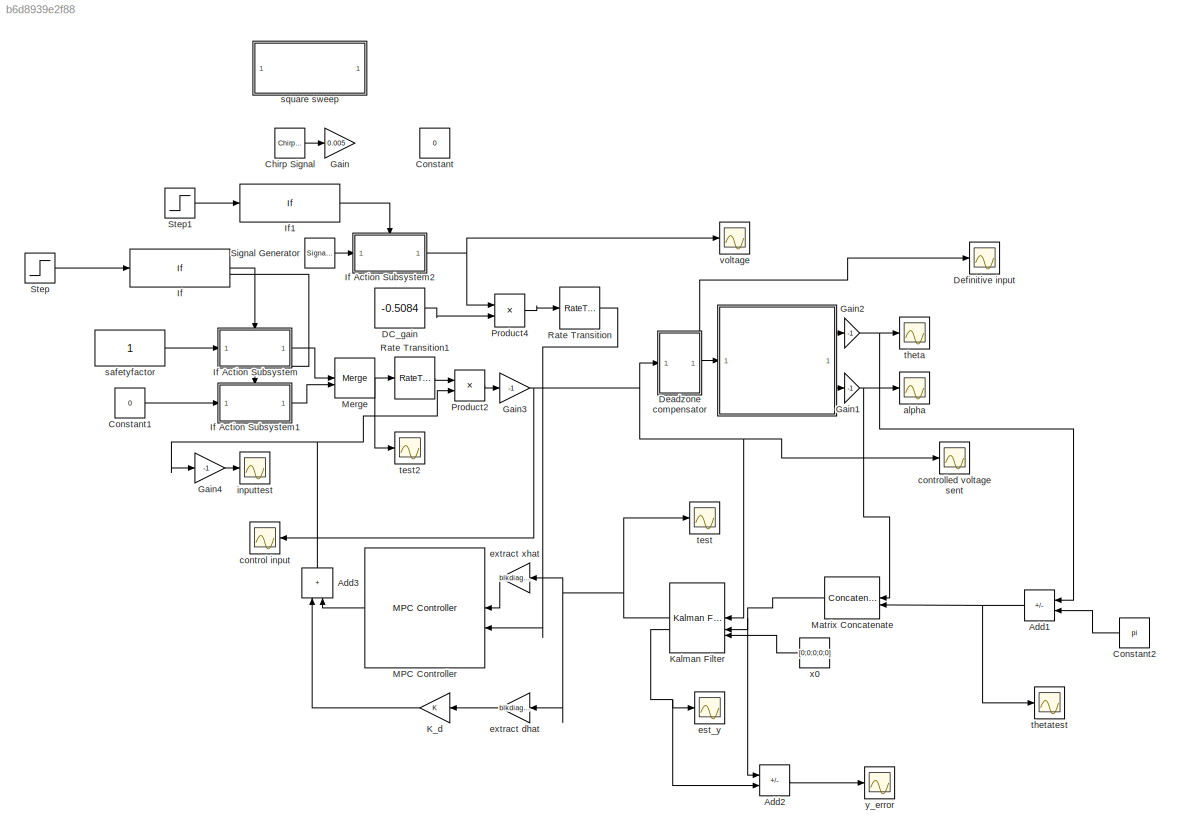
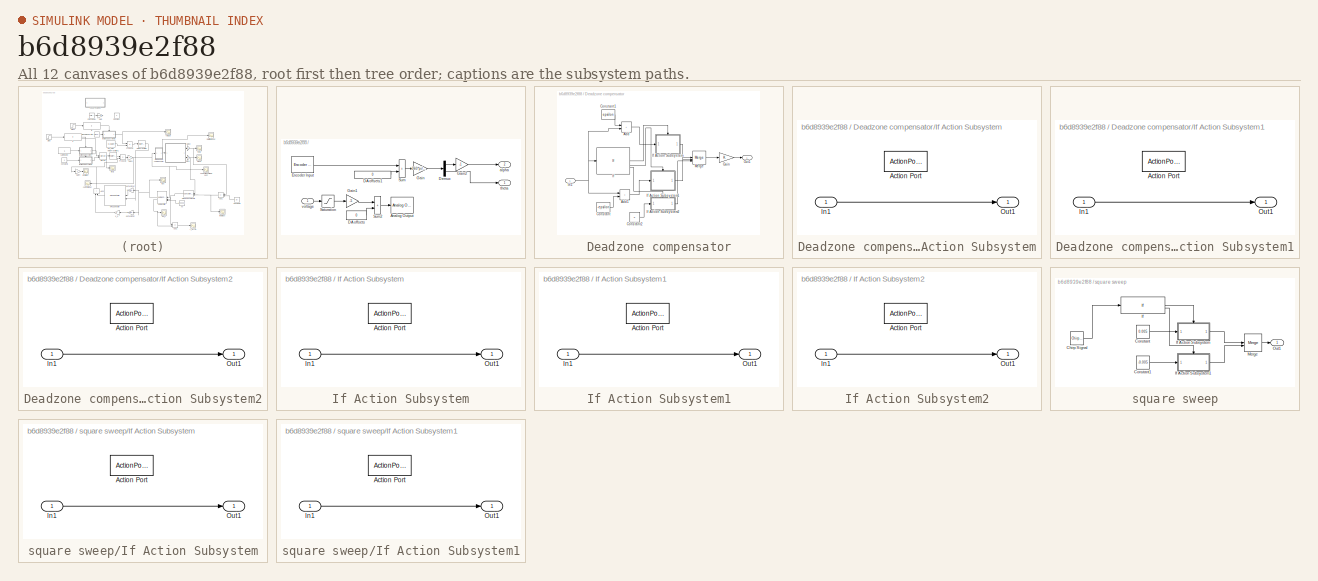
[diagram: thumbnail index - all 12 canvases of the model, root first then tree order]
MODEL slx_b6d8939e2f88
KIND model
CONFIG AbsTol = auto
CONFIG EnableMultiTasking = on
CONFIG FixedStep = auto
CONFIG MaxStep = auto
CONFIG MinStep = auto
CONFIG RelTol = 1e-3
CONFIG SampleTimeConstraint = Unconstrained
CONFIG SolverName = ode1
CONFIG StartTime = 0.0
CONFIG StopTime = 120
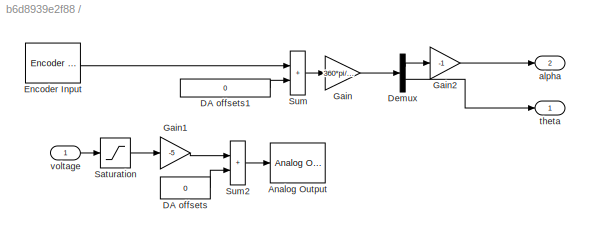
BLOCK [SubSystem]  
  InitFcn = hwinit
  LoadFcn = hwinit
  NameLocation = top
  ShowPortLabels = none
BLOCK [Reference]  /Analog Output  REF=sldrtlib/Analog Output
  AttributesFormatString = Humusoft\nMF634 [auto]
  SourceBlock = sldrtlib/Analog Output
  SourceType = Simulink Desktop Real-Time Analog Output
BLOCK [Constant]  /DA offsets
  Value = 0
BLOCK [Constant]  /DA offsets1
  SampleTime = h
  Value = 0
BLOCK [Demux]  /Demux
  Outputs = 2
BLOCK [Reference]  /Encoder Input  REF=sldrtlib/Encoder Input
  AttributesFormatString = Humusoft\nMF634 [auto]
  SourceBlock = sldrtlib/Encoder Input
  SourceType = Simulink Desktop Real-Time Encoder Input
BLOCK [Gain]  /Gain
  Gain = 360*pi/(180*512*4)
  OutDataTypeStr = Inherit: Same as input
  ParamDataTypeStr = Inherit: Same as input
  SaturateOnIntegerOverflow = on
BLOCK [Gain]  /Gain1
  Gain = -5
  OutDataTypeStr = Inherit: Same as input
  ParamDataTypeStr = Inherit: Same as input
  SaturateOnIntegerOverflow = on
BLOCK [Gain]  /Gain2
  Gain = -1
  OutDataTypeStr = Inherit: Same as input
  ParamDataTypeStr = Inherit: Same as input
  SaturateOnIntegerOverflow = on
BLOCK [Saturate]  /Saturation
  LowerLimit = -1
  UpperLimit = 1
BLOCK [Sum]  /Sum
  IconShape = rectangular
  InputSameDT = on
  OutDataTypeStr = Inherit: Same as first input
  SaturateOnIntegerOverflow = on
BLOCK [Sum]  /Sum2
  IconShape = rectangular
  InputSameDT = on
  OutDataTypeStr = Inherit: Same as first input
  SaturateOnIntegerOverflow = on
BLOCK [Outport]  /alpha
  Port = 2
  Tag = Cable length
BLOCK [Outport]  /theta
  Tag = Cable length
BLOCK [Inport]  /voltage
BLOCK [Sum] Add1
  IconShape = rectangular
  Inputs = +-
BLOCK [Sum] Add2
  IconShape = rectangular
  Inputs = +-
BLOCK [Sum] Add3
  IconShape = rectangular
  NameLocation = right
BLOCK [Reference] Chirp Signal  REF=simulink/Sources/Chirp Signal
  SourceBlock = simulink/Sources/Chirp Signal
  SourceType = chirp
BLOCK [Constant] Constant
  Value = 0
BLOCK [Constant] Constant1
  Value = 0
BLOCK [Constant] Constant2
  Value = pi
BLOCK [Constant] DC_gain
  SampleTime = h
  Value = -0.5084
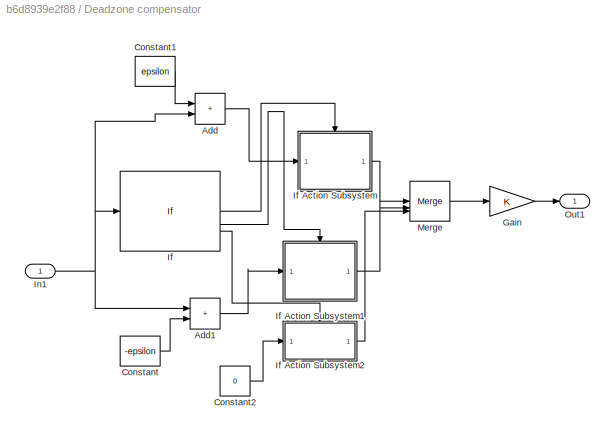
BLOCK [SubSystem] Deadzone compensator
BLOCK [Sum] Deadzone compensator/Add
  IconShape = rectangular
BLOCK [Sum] Deadzone compensator/Add1
  IconShape = rectangular
BLOCK [Constant] Deadzone compensator/Constant
  Value = -epsilon
BLOCK [Constant] Deadzone compensator/Constant1
  Value = epsilon
BLOCK [Constant] Deadzone compensator/Constant2
  Value = 0
BLOCK [Gain] Deadzone compensator/Gain
BLOCK [If] Deadzone compensator/If
  ElseIfExpressions = u1 < 0
BLOCK [SubSystem] Deadzone compensator/If Action Subsystem
  TreatAsAtomicUnit = on
BLOCK [ActionPort] Deadzone compensator/If Action Subsystem/Action Port
  ActionPortLabel = if(u1 > 0)
BLOCK [Inport] Deadzone compensator/If Action Subsystem/In1
BLOCK [Outport] Deadzone compensator/If Action Subsystem/Out1
BLOCK [SubSystem] Deadzone compensator/If Action Subsystem1
  TreatAsAtomicUnit = on
BLOCK [ActionPort] Deadzone compensator/If Action Subsystem1/Action Port
  ActionPortLabel = elseif(u1 < 0)
BLOCK [Inport] Deadzone compensator/If Action Subsystem1/In1
BLOCK [Outport] Deadzone compensator/If Action Subsystem1/Out1
BLOCK [SubSystem] Deadzone compensator/If Action Subsystem2
  TreatAsAtomicUnit = on
BLOCK [ActionPort] Deadzone compensator/If Action Subsystem2/Action Port
  ActionPortLabel = else
BLOCK [Inport] Deadzone compensator/If Action Subsystem2/In1
BLOCK [Outport] Deadzone compensator/If Action Subsystem2/Out1
BLOCK [Inport] Deadzone compensator/In1
BLOCK [Merge] Deadzone compensator/Merge
  Inputs = 3
BLOCK [Outport] Deadzone compensator/Out1
BLOCK [Scope] Definitive input
  Floating = off
  NumInputPorts = 1
  ScopeSpecificationString = Simulink.scopes.TimeScopeBlockCfg('CurrentConfiguration', extmgr.ConfigurationSet(extmgr.Configuration('Core','General UI',true),extmgr.Configuration('Core','Source UI',true),extmgr.Configuration('Sources','WiredSimulink',true,'DataLoggingVariableName','ScopeData1'),extmgr.Configuration('Visuals','Time Domain',true,'SerializedDisplays',{struct('MinYLimReal','-0.07381','MaxYLimReal','0.20317','YLab...<+1451ch>
BLOCK [Gain] Gain
  Gain = 0.005
BLOCK [Gain] Gain1
  Gain = -1
BLOCK [Gain] Gain2
  Gain = -1
BLOCK [Gain] Gain3
  Gain = -1
BLOCK [Gain] Gain4
  Gain = -1
BLOCK [If] If
BLOCK [SubSystem] If Action Subsystem
  TreatAsAtomicUnit = on
BLOCK [ActionPort] If Action Subsystem/Action Port
  ActionPortLabel = if(u1 > 0)
BLOCK [Inport] If Action Subsystem/In1
BLOCK [Outport] If Action Subsystem/Out1
BLOCK [SubSystem] If Action Subsystem1
  TreatAsAtomicUnit = on
BLOCK [ActionPort] If Action Subsystem1/Action Port
  ActionPortLabel = else
BLOCK [Inport] If Action Subsystem1/In1
BLOCK [Outport] If Action Subsystem1/Out1
BLOCK [SubSystem] If Action Subsystem2
  TreatAsAtomicUnit = on
BLOCK [ActionPort] If Action Subsystem2/Action Port
  ActionPortLabel = if(u1 > 0)
BLOCK [Inport] If Action Subsystem2/In1
BLOCK [Outport] If Action Subsystem2/Out1
BLOCK [If] If1
BLOCK [Gain] K_d
BLOCK [Reference] Kalman Filter  REF=ctrlSharedLib/Kalman Filter
  SourceBlock = ctrlSharedLib/Kalman Filter
  SourceType = ctrlKalmanFilter
BLOCK [Reference] MPC Controller  REF=mpclib/MPC Controller  (lib defined in mdl_ae329e0e0455)
  SCDEnableBlockLinearizationSpecification = on
  SourceBlock = mpclib/MPC Controller
  SourceType = MPC
BLOCK [Concatenate] Matrix Concatenate
  ConcatenateDimension = 2
  NameLocation = top
BLOCK [Merge] Merge
BLOCK [Product] Product2
BLOCK [Product] Product4
  Inputs = */
BLOCK [RateTransition] Rate Transition
  OutPortSampleTime = h
BLOCK [RateTransition] Rate Transition1
  OutPortSampleTime = h
BLOCK [SignalGenerator] Signal Generator
  Amplitude = 0.05
  Frequency = 0.05
  WaveForm = square
BLOCK [Step] Step
  SampleTime = 0
  Time = 4
BLOCK [Step] Step1
  SampleTime = h
  Time = 12
BLOCK [Scope] alpha
  Floating = off
  NumInputPorts = 1
  ScopeSpecificationString = Simulink.scopes.TimeScopeBlockCfg('CurrentConfiguration', extmgr.ConfigurationSet(extmgr.Configuration('Core','General UI',true),extmgr.Configuration('Core','Source UI',true),extmgr.Configuration('Sources','WiredSimulink',true,'DataLogging',true,'DataLoggingVariableName','alpha','SampleTime','h','DataLoggingSaveFormat','Array','DataLoggingDecimation','1','DataLoggingDecimateData',true),extmgr.Conf...<+1783ch>
BLOCK [Scope] control input
  Floating = off
  NumInputPorts = 1
  ScopeSpecificationString = Simulink.scopes.TimeScopeBlockCfg('CurrentConfiguration', extmgr.ConfigurationSet(extmgr.Configuration('Core','General UI',true),extmgr.Configuration('Core','Source UI',true),extmgr.Configuration('Sources','WiredSimulink',true,'DataLoggingVariableName','ScopeData2'),extmgr.Configuration('Visuals','Time Domain',true,'SerializedDisplays',{struct('MinYLimReal','-0.91638','MaxYLimReal','0.67671','YLab...<+1435ch>
BLOCK [Scope] controlled voltage sent
  Floating = off
  NumInputPorts = 1
  ScopeSpecificationString = Simulink.scopes.TimeScopeBlockCfg('CurrentConfiguration', extmgr.ConfigurationSet(extmgr.Configuration('Core','General UI',true),extmgr.Configuration('Core','Source UI',true),extmgr.Configuration('Sources','WiredSimulink',true,'DataLoggingVariableName','ScopeData1'),extmgr.Configuration('Visuals','Time Domain',true,'SerializedDisplays',{struct('MinYLimReal','-1.69035','MaxYLimReal','2.16971','YLab...<+1433ch>
BLOCK [Scope] est_y
  Floating = off
  NumInputPorts = 1
  ScopeSpecificationString = Simulink.scopes.TimeScopeBlockCfg('CurrentConfiguration', extmgr.ConfigurationSet(extmgr.Configuration('Core','General UI',true),extmgr.Configuration('Core','Source UI',true),extmgr.Configuration('Sources','WiredSimulink',true,'DataLoggingVariableName','ScopeData1'),extmgr.Configuration('Visuals','Time Domain',true,'SerializedDisplays',{struct('MinYLimReal','-0.10772','MaxYLimReal','0.05326','YLab...<+1465ch>
BLOCK [Gain] extract dhat
  Gain = blkdiag(zeros(4,4),1)
  Multiplication = Matrix(K*u)
BLOCK [Gain] extract xhat
  Gain = blkdiag(eye(4),0)
  Multiplication = Matrix(K*u)
BLOCK [Scope] inputtest
  Floating = off
  NumInputPorts = 1
  ScopeSpecificationString = Simulink.scopes.TimeScopeBlockCfg('CurrentConfiguration', extmgr.ConfigurationSet(extmgr.Configuration('Core','General UI',true),extmgr.Configuration('Core','Source UI',true),extmgr.Configuration('Sources','WiredSimulink',true,'DataLoggingVariableName','ScopeData1'),extmgr.Configuration('Visuals','Time Domain',true,'SerializedDisplays',{struct('MinYLimReal','-23.9749','MaxYLimReal','157.3897','YLa...<+1465ch>
BLOCK [Constant] safetyfactor
  SampleTime = h
BLOCK [SubSystem] square sweep
BLOCK [Reference] square sweep/Chirp Signal  REF=simulink/Sources/Chirp Signal
  SourceBlock = simulink/Sources/Chirp Signal
  SourceType = chirp
BLOCK [Constant] square sweep/Constant
  Value = 0.005
BLOCK [Constant] square sweep/Constant1
  Value = -0.005
BLOCK [If] square sweep/If
BLOCK [SubSystem] square sweep/If Action Subsystem
  TreatAsAtomicUnit = on
BLOCK [ActionPort] square sweep/If Action Subsystem/Action Port
  ActionPortLabel = if(u1 > 0)
BLOCK [Inport] square sweep/If Action Subsystem/In1
BLOCK [Outport] square sweep/If Action Subsystem/Out1
BLOCK [SubSystem] square sweep/If Action Subsystem1
  TreatAsAtomicUnit = on
BLOCK [ActionPort] square sweep/If Action Subsystem1/Action Port
  ActionPortLabel = else
BLOCK [Inport] square sweep/If Action Subsystem1/In1
BLOCK [Outport] square sweep/If Action Subsystem1/Out1
BLOCK [Merge] square sweep/Merge
BLOCK [Outport] square sweep/Out1
BLOCK [Scope] test
  Floating = off
  NumInputPorts = 1
  ScopeSpecificationString = Simulink.scopes.TimeScopeBlockCfg('CurrentConfiguration', extmgr.ConfigurationSet(extmgr.Configuration('Core','General UI',true),extmgr.Configuration('Core','Source UI',true),extmgr.Configuration('Sources','WiredSimulink',true,'DataLoggingVariableName','ScopeData1'),extmgr.Configuration('Visuals','Time Domain',true,'SerializedDisplays',{struct('MinYLimReal','-192.50669','MaxYLimReal','179.78255','...<+1539ch>
BLOCK [Scope] test2
  Floating = off
  NumInputPorts = 1
  ScopeSpecificationString = Simulink.scopes.TimeScopeBlockCfg('CurrentConfiguration', extmgr.ConfigurationSet(extmgr.Configuration('Core','General UI',true),extmgr.Configuration('Core','Source UI',true),extmgr.Configuration('Sources','WiredSimulink',true,'DataLoggingVariableName','ScopeData1'),extmgr.Configuration('Visuals','Time Domain',true,'SerializedDisplays',{struct('MinYLimReal','-0.125','MaxYLimReal','1.125','YLabelRe...<+1404ch>
BLOCK [Scope] theta
  Floating = off
  NumInputPorts = 1
  ScopeSpecificationString = Simulink.scopes.TimeScopeBlockCfg('CurrentConfiguration', extmgr.ConfigurationSet(extmgr.Configuration('Core','General UI',true),extmgr.Configuration('Core','Source UI',true),extmgr.Configuration('Sources','WiredSimulink',true,'DataLogging',true,'DataLoggingVariableName','theta','SampleTime','h','DataLoggingSaveFormat','Array','DataLoggingDecimation','1','DataLoggingDecimateData',true),extmgr.Conf...<+1749ch>
BLOCK [Scope] thetatest
  Floating = off
  NumInputPorts = 1
  ScopeSpecificationString = Simulink.scopes.TimeScopeBlockCfg('CurrentConfiguration', extmgr.ConfigurationSet(extmgr.Configuration('Core','General UI',true),extmgr.Configuration('Core','Source UI',true),extmgr.Configuration('Sources','WiredSimulink',true,'DataLoggingVariableName','ScopeData2'),extmgr.Configuration('Visuals','Time Domain',true,'SerializedDisplays',{struct('MinYLimReal','-0.01091','MaxYLimReal','0.01783','YLab...<+1461ch>
BLOCK [Scope] voltage
  Floating = off
  NumInputPorts = 1
  ScopeSpecificationString = Simulink.scopes.TimeScopeBlockCfg('CurrentConfiguration', extmgr.ConfigurationSet(extmgr.Configuration('Core','General UI',true),extmgr.Configuration('Core','Source UI',true),extmgr.Configuration('Sources','WiredSimulink',true,'DataLogging',true,'DataLoggingVariableName','u','SampleTime','h','DataLoggingSaveFormat','Array','DataLoggingDecimation','1','DataLoggingDecimateData',true),extmgr.Configur...<+1791ch>
BLOCK [Constant] x0
  Value = [0;0;0;0;0]
BLOCK [Scope] y_error
  Floating = off
  NumInputPorts = 1
  ScopeSpecificationString = Simulink.scopes.TimeScopeBlockCfg('CurrentConfiguration', extmgr.ConfigurationSet(extmgr.Configuration('Core','General UI',true),extmgr.Configuration('Core','Source UI',true),extmgr.Configuration('Sources','WiredSimulink',true,'DataLoggingVariableName','ScopeData3'),extmgr.Configuration('Visuals','Time Domain',true,'SerializedDisplays',{struct('MinYLimReal','-0.00000000036','MaxYLimReal','0.000000...<+1474ch>
LINE  /DA offsets1:1 ->  /Sum:2
LINE  /DA offsets:1 ->  /Sum2:2
LINE  /Demux:1 ->  /Gain2:1
LINE  /Demux:2 ->  /theta:1
LINE  /Encoder Input:1 ->  /Sum:1
LINE  /Gain1:1 ->  /Sum2:1
LINE  /Gain2:1 ->  /alpha:1
LINE  /Gain:1 ->  /Demux:1
LINE  /Saturation:1 ->  /Gain1:1
LINE  /Sum2:1 ->  /Analog Output:1
LINE  /Sum:1 ->  /Gain:1
LINE  /voltage:1 ->  /Saturation:1
LINE  :1 -> Gain2:1
LINE  :2 -> Gain1:1
NET Add1:1 -> Matrix Concatenate:2, thetatest:1
LINE Add2:1 -> y_error:1
NET Add3:1 -> Gain4:1, Product2:2
LINE Chirp Signal:1 -> Gain:1
LINE Constant1:1 -> If Action Subsystem1:1
LINE Constant2:1 -> Add1:2
LINE DC_gain:1 -> Product4:2
LINE Deadzone compensator/Add1:1 -> Deadzone compensator/If Action Subsystem1:1
LINE Deadzone compensator/Add:1 -> Deadzone compensator/If Action Subsystem:1
LINE Deadzone compensator/Constant1:1 -> Deadzone compensator/Add:1
LINE Deadzone compensator/Constant2:1 -> Deadzone compensator/If Action Subsystem2:1
LINE Deadzone compensator/Constant:1 -> Deadzone compensator/Add1:2
LINE Deadzone compensator/Gain:1 -> Deadzone compensator/Out1:1
LINE Deadzone compensator/If Action Subsystem/In1:1 -> Deadzone compensator/If Action Subsystem/Out1:1
LINE Deadzone compensator/If Action Subsystem1/In1:1 -> Deadzone compensator/If Action Subsystem1/Out1:1
LINE Deadzone compensator/If Action Subsystem1:1 -> Deadzone compensator/Merge:2
LINE Deadzone compensator/If Action Subsystem2/In1:1 -> Deadzone compensator/If Action Subsystem2/Out1:1
LINE Deadzone compensator/If Action Subsystem2:1 -> Deadzone compensator/Merge:3
LINE Deadzone compensator/If Action Subsystem:1 -> Deadzone compensator/Merge:1
LINE Deadzone compensator/If:1 -> Deadzone compensator/If Action Subsystem:ifaction
LINE Deadzone compensator/If:2 -> Deadzone compensator/If Action Subsystem1:ifaction
LINE Deadzone compensator/If:3 -> Deadzone compensator/If Action Subsystem2:ifaction
NET Deadzone compensator/In1:1 -> Deadzone compensator/Add1:1, Deadzone compensator/Add:2, Deadzone compensator/If:1
LINE Deadzone compensator/Merge:1 -> Deadzone compensator/Gain:1
NET Deadzone compensator:1 ->  :1, Definitive input:1
NET Gain1:1 -> Matrix Concatenate:1, alpha:1
NET Gain2:1 -> Add1:1, theta:1
NET Gain3:1 -> Deadzone compensator:1, Kalman Filter:1, control input:1, controlled voltage sent:1
LINE Gain4:1 -> inputtest:1
LINE If Action Subsystem/In1:1 -> If Action Subsystem/Out1:1
LINE If Action Subsystem1/In1:1 -> If Action Subsystem1/Out1:1
LINE If Action Subsystem1:1 -> Merge:2
LINE If Action Subsystem2/In1:1 -> If Action Subsystem2/Out1:1
NET If Action Subsystem2:1 -> Product4:1, voltage:1
LINE If Action Subsystem:1 -> Merge:1
LINE If1:1 -> If Action Subsystem2:ifaction
LINE If:1 -> If Action Subsystem:ifaction
LINE If:2 -> If Action Subsystem1:ifaction
LINE K_d:1 -> Add3:1
NET Kalman Filter:1 -> extract dhat:1, extract xhat:1, test:1
NET Kalman Filter:2 -> Add2:2, est_y:1
LINE MPC Controller:1 -> Add3:2
NET Matrix Concatenate:1 -> Add2:1, Kalman Filter:2
NET Merge:1 -> Rate Transition1:1, test2:1
LINE Product2:1 -> Gain3:1
LINE Product4:1 -> Rate Transition:1
LINE Rate Transition1:1 -> Product2:1
LINE Rate Transition:1 -> MPC Controller:2
LINE Signal Generator:1 -> If Action Subsystem2:1
LINE Step1:1 -> If1:1
LINE Step:1 -> If:1
LINE extract dhat:1 -> K_d:1
LINE extract xhat:1 -> MPC Controller:1
LINE safetyfactor:1 -> If Action Subsystem:1
LINE square sweep/Chirp Signal:1 -> square sweep/If:1
LINE square sweep/Constant1:1 -> square sweep/If Action Subsystem1:1
LINE square sweep/Constant:1 -> square sweep/If Action Subsystem:1
LINE square sweep/If Action Subsystem/In1:1 -> square sweep/If Action Subsystem/Out1:1
LINE square sweep/If Action Subsystem1/In1:1 -> square sweep/If Action Subsystem1/Out1:1
LINE square sweep/If Action Subsystem1:1 -> square sweep/Merge:2
LINE square sweep/If Action Subsystem:1 -> square sweep/Merge:1
LINE square sweep/If:1 -> square sweep/If Action Subsystem:ifaction
LINE square sweep/If:2 -> square sweep/If Action Subsystem1:ifaction
LINE square sweep/Merge:1 -> square sweep/Out1:1
LINE x0:1 -> Kalman Filter:3
note: NET lines group one-source signal fan-out (src -> all destinations, sorted); 1:1 wires keep LINE
